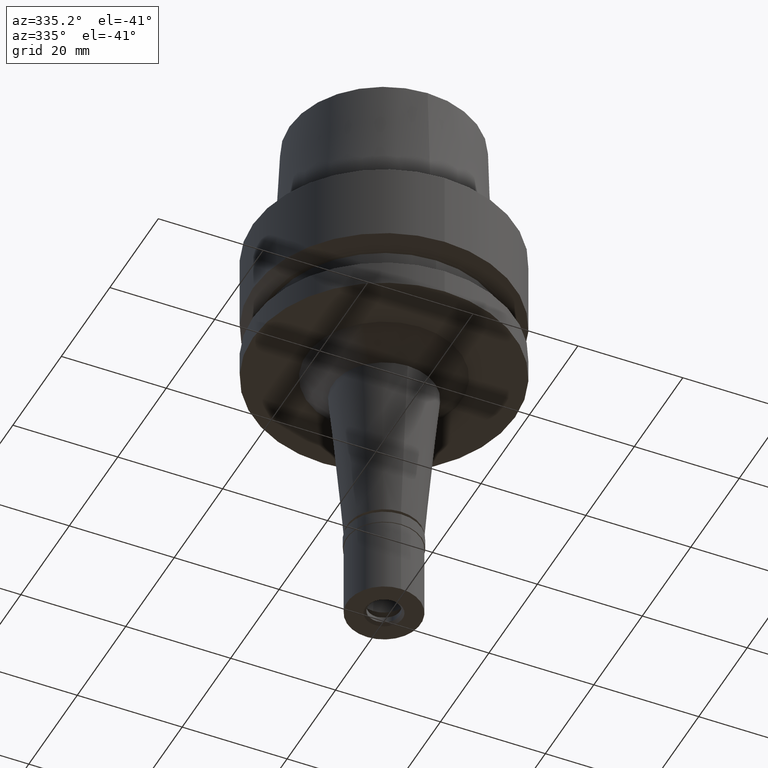
[diagram: clean part render]
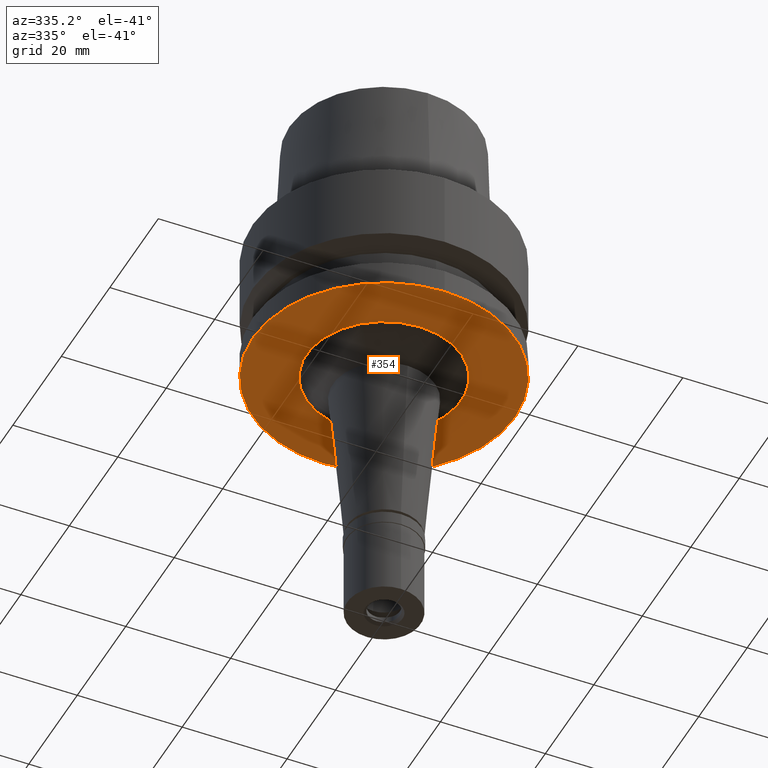
[diagram: same view with one face highlighted and labeled with its STEP entity id]
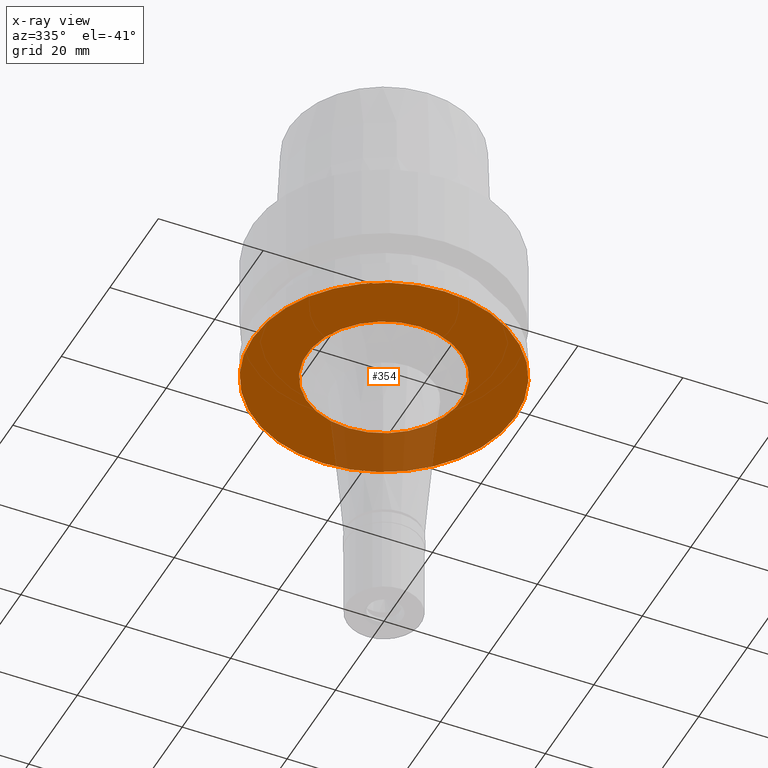
[diagram: x-ray of the same camera — body ghosted, the highlighted face saturated]
A machine part, auxiliary view. The second image highlights one B-rep face of the part: STEP entity #354.
The next image is the same camera in x-ray: the body ghosted, the highlighted face saturated — about 15% of this face is hidden behind the body in this view.
In plain terms, the highlighted planar face has unit normal (0, 0, -1).
Its self-contained STEP definition (entity closure, byte-faithful):
#21 = AXIS2_PLACEMENT_3D ( 'NONE', #552, #802, #2017 ) ;
#25 = VERTEX_POINT ( 'NONE', #1459 ) ;
#51 = DIRECTION ( 'NONE',  ( 0.0000000000000000000, -1.000000000000000000, 0.0000000000000000000 ) ) ;
#105 = ORIENTED_EDGE ( 'NONE', *, *, #1148, .F. ) ;
#354 = ADVANCED_FACE ( 'NONE', ( #600, #2460 ), #2238, .T. ) ;
#380 = DIRECTION ( 'NONE',  ( 0.0000000000000000000, 1.000000000000000000, 0.0000000000000000000 ) ) ;
#441 = AXIS2_PLACEMENT_3D ( 'NONE', #2372, #1990, #2382 ) ;
#476 = CARTESIAN_POINT ( 'NONE',  ( 0.0000000000000000000, 14.73839516836000030, -26.00000000000000000 ) ) ;
#546 = ORIENTED_EDGE ( 'NONE', *, *, #1274, .F. ) ;
#552 = CARTESIAN_POINT ( 'NONE',  ( 0.0000000000000000000, 0.0000000000000000000, -26.00000000000000000 ) ) ;
#577 = CARTESIAN_POINT ( 'NONE',  ( 0.0000000000000000000, 0.0000000000000000000, -26.00000000000000000 ) ) ;
#589 = ORIENTED_EDGE ( 'NONE', *, *, #2381, .F. ) ;
#600 = FACE_OUTER_BOUND ( 'NONE', #1919, .T. ) ;
#606 = DIRECTION ( 'NONE',  ( 0.0000000000000000000, -1.000000000000000000, 0.0000000000000000000 ) ) ;
#725 = VERTEX_POINT ( 'NONE', #2359 ) ;
#802 = DIRECTION ( 'NONE',  ( 0.0000000000000000000, 0.0000000000000000000, 1.000000000000000000 ) ) ;
#1015 = DIRECTION ( 'NONE',  ( 0.0000000000000000000, 0.0000000000000000000, -1.000000000000000000 ) ) ;
#1148 = EDGE_CURVE ( 'NONE', #2156, #25, #2061, .T. ) ;
#1221 = AXIS2_PLACEMENT_3D ( 'NONE', #2655, #1015, #606 ) ;
#1235 = DIRECTION ( 'NONE',  ( 0.0000000000000000000, 0.0000000000000000000, -1.000000000000000000 ) ) ;
#1274 = EDGE_CURVE ( 'NONE', #1381, #725, #1765, .T. ) ;
#1374 = CIRCLE ( 'NONE', #441, 25.00000000000000000 ) ;
#1381 = VERTEX_POINT ( 'NONE', #1463 ) ;
#1459 = CARTESIAN_POINT ( 'NONE',  ( 0.0000000000000000000, -14.73839516836000030, -26.00000000000000000 ) ) ;
#1463 = CARTESIAN_POINT ( 'NONE',  ( 0.0000000000000000000, -25.00000000000000000, -26.00000000000000000 ) ) ;
#1497 = CARTESIAN_POINT ( 'NONE',  ( 0.0000000000000000000, 0.0000000000000000000, -26.00000000000000000 ) ) ;
#1765 = CIRCLE ( 'NONE', #21, 25.00000000000000000 ) ;
#1919 = EDGE_LOOP ( 'NONE', ( #589, #546 ) ) ;
#1990 = DIRECTION ( 'NONE',  ( 0.0000000000000000000, 0.0000000000000000000, 1.000000000000000000 ) ) ;
#2017 = DIRECTION ( 'NONE',  ( 0.0000000000000000000, -1.000000000000000000, 0.0000000000000000000 ) ) ;
#2061 = CIRCLE ( 'NONE', #2364, 14.73839516836000030 ) ;
#2077 = DIRECTION ( 'NONE',  ( 0.0000000000000000000, 0.0000000000000000000, -1.000000000000000000 ) ) ;
#2117 = ORIENTED_EDGE ( 'NONE', *, *, #2256, .F. ) ;
#2156 = VERTEX_POINT ( 'NONE', #476 ) ;
#2238 = PLANE ( 'NONE',  #1221 ) ;
#2256 = EDGE_CURVE ( 'NONE', #25, #2156, #2434, .T. ) ;
#2359 = CARTESIAN_POINT ( 'NONE',  ( 0.0000000000000000000, 25.00000000000000000, -26.00000000000000000 ) ) ;
#2364 = AXIS2_PLACEMENT_3D ( 'NONE', #577, #1235, #380 ) ;
#2372 = CARTESIAN_POINT ( 'NONE',  ( 0.0000000000000000000, 0.0000000000000000000, -26.00000000000000000 ) ) ;
#2381 = EDGE_CURVE ( 'NONE', #725, #1381, #1374, .T. ) ;
#2382 = DIRECTION ( 'NONE',  ( 0.0000000000000000000, 1.000000000000000000, 0.0000000000000000000 ) ) ;
#2434 = CIRCLE ( 'NONE', #2521, 14.73839516836000030 ) ;
#2460 = FACE_BOUND ( 'NONE', #2525, .T. ) ;
#2521 = AXIS2_PLACEMENT_3D ( 'NONE', #1497, #2077, #51 ) ;
#2525 = EDGE_LOOP ( 'NONE', ( #105, #2117 ) ) ;
#2655 = CARTESIAN_POINT ( 'NONE',  ( 0.0000000000000000000, 0.0000000000000000000, -26.00000000000000000 ) ) ;